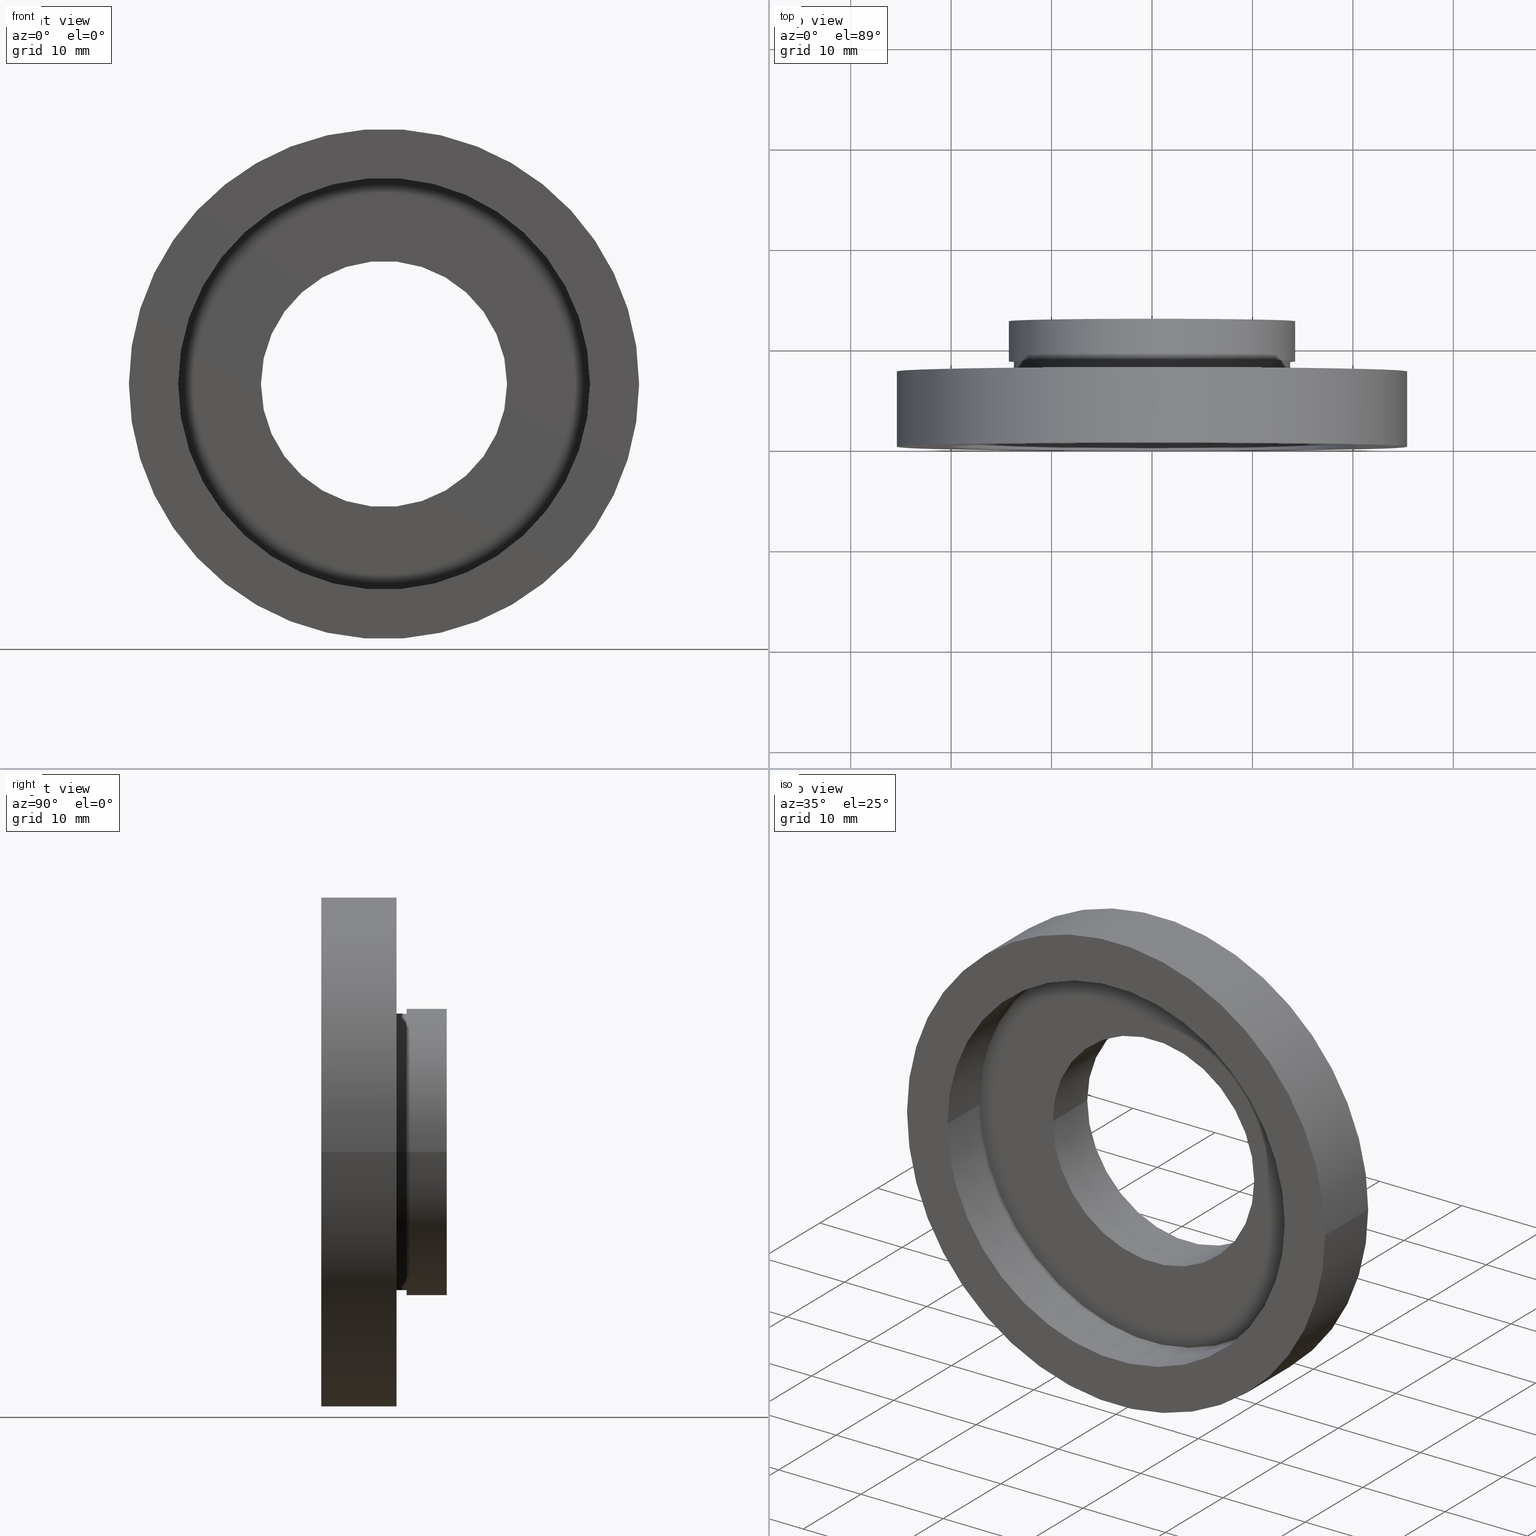
[diagram: canonical four-view strip — front | top / right | iso, engineering-drawing reading convention]
A machine part, canonical four-view strip (front | top / right | iso — engineering-drawing reading convention). The complete STEP part file that produces these views, byte-faithful:
ISO-10303-21;
HEADER;
FILE_DESCRIPTION (( 'STEP AP214' ),
    '1' );
FILE_NAME ('504040.STEP',
    '2019-10-08T02:39:13',
    ( 'user' ),
    ( '΢���й�' ),
    'SwSTEP 2.0',
    'SolidWorks 2016',
    '' );
FILE_SCHEMA (( 'AUTOMOTIVE_DESIGN' ));
ENDSEC;

DATA;
#1 = PRESENTATION_STYLE_ASSIGNMENT (( #20 ) ) ;
#2 = ORIENTED_EDGE ( 'NONE', *, *, #453, .T. ) ;
#3 = MECHANICAL_DESIGN_GEOMETRIC_PRESENTATION_REPRESENTATION (  '', ( #509 ), #420 ) ;
#4 = CARTESIAN_POINT ( 'NONE',  ( 1.149455719078122700E-015, 7.499999999999998200, 0.0000000000000000000 ) ) ;
#5 = AXIS2_PLACEMENT_3D ( 'NONE', #614, #41, #569 ) ;
#6 = EDGE_LOOP ( 'NONE', ( #45, #181 ) ) ;
#7 = FACE_BOUND ( 'NONE', #33, .T. ) ;
#8 = EDGE_LOOP ( 'NONE', ( #594, #173, #358, #580 ) ) ;
#9 = DIRECTION ( 'NONE',  ( -1.000000000000000000, -1.224646799147351000E-016, 0.0000000000000000000 ) ) ;
#10 = PLANE ( 'NONE',  #278 ) ;
#11 = DIRECTION ( 'NONE',  ( -1.000000000000000000, -1.217349807703022400E-016, 0.0000000000000000000 ) ) ;
#12 = DIRECTION ( 'NONE',  ( -1.224646799147351000E-016, 1.000000000000000000, -0.0000000000000000000 ) ) ;
#13 = VERTEX_POINT ( 'NONE', #398 ) ;
#14 = ADVANCED_FACE ( 'NONE', ( #221 ), #611, .F. ) ;
#15 = CYLINDRICAL_SURFACE ( 'NONE', #391, 25.39999999999999900 ) ;
#16 = COLOUR_RGB ( '',1.000000000000000000, 1.000000000000000000, 1.000000000000000000 ) ;
#17 =( GEOMETRIC_REPRESENTATION_CONTEXT ( 3 ) GLOBAL_UNCERTAINTY_ASSIGNED_CONTEXT ( ( #314 ) ) GLOBAL_UNIT_ASSIGNED_CONTEXT ( ( #127, #71, #486 ) ) REPRESENTATION_CONTEXT ( 'NONE', 'WORKASPACE' ) );
#18 = VERTEX_POINT ( 'NONE', #373 ) ;
#19 = DIRECTION ( 'NONE',  ( -1.000000000000000000, -2.434699615406044700E-016, 0.0000000000000000000 ) ) ;
#20 = SURFACE_STYLE_USAGE ( .BOTH. , #421 ) ;
#21 = CARTESIAN_POINT ( 'NONE',  ( 1.026991039163387700E-015, 8.499999999999998200, 0.0000000000000000000 ) ) ;
#22 = EDGE_CURVE ( 'NONE', #435, #523, #550, .T. ) ;
#23 = CARTESIAN_POINT ( 'NONE',  ( -20.50000000000000400, 16.88601823708207300, 0.0000000000000000000 ) ) ;
#24 = ORIENTED_EDGE ( 'NONE', *, *, #302, .T. ) ;
#25 = PRESENTATION_STYLE_ASSIGNMENT (( #219 ) ) ;
#26 = CARTESIAN_POINT ( 'NONE',  ( 20.50000000000000400, -9.589210137015444400E-016, 2.510525938252074500E-015 ) ) ;
#27 = AXIS2_PLACEMENT_3D ( 'NONE', #516, #568, #134 ) ;
#28 = ORIENTED_EDGE ( 'NONE', *, *, #613, .T. ) ;
#29 = CARTESIAN_POINT ( 'NONE',  ( -25.39999999999999900, 16.88601823708207300, 0.0000000000000000000 ) ) ;
#30 = DIRECTION ( 'NONE',  ( -1.224646799147351000E-016, 1.000000000000000000, -0.0000000000000000000 ) ) ;
#31 = PRESENTATION_LAYER_ASSIGNMENT (  '', '', ( #48 ) ) ;
#32 = FILL_AREA_STYLE_COLOUR ( '', #403 ) ;
#33 = EDGE_LOOP ( 'NONE', ( #518, #360 ) ) ;
#34 = ORIENTED_EDGE ( 'NONE', *, *, #609, .T. ) ;
#35 = EDGE_CURVE ( 'NONE', #351, #63, #70, .T. ) ;
#36 = CARTESIAN_POINT ( 'NONE',  ( -20.49999999999999600, -5.979972890205683900E-015, 0.0000000000000000000 ) ) ;
#37 = ORIENTED_EDGE ( 'NONE', *, *, #247, .F. ) ;
#38 = SURFACE_SIDE_STYLE ('',( #563 ) ) ;
#39 = EDGE_CURVE ( 'NONE', #63, #65, #289, .T. ) ;
#40 = DIRECTION ( 'NONE',  ( -1.000000000000000000, 0.0000000000000000000, 0.0000000000000000000 ) ) ;
#41 = DIRECTION ( 'NONE',  ( -1.224646799147351000E-016, 1.000000000000000000, -0.0000000000000000000 ) ) ;
#42 = PRESENTATION_LAYER_ASSIGNMENT (  '', '', ( #509 ) ) ;
#43 = CARTESIAN_POINT ( 'NONE',  ( 1.026991039163387700E-015, 8.499999999999998200, 0.0000000000000000000 ) ) ;
#44 = ORIENTED_EDGE ( 'NONE', *, *, #247, .T. ) ;
#45 = ORIENTED_EDGE ( 'NONE', *, *, #465, .T. ) ;
#46 = CYLINDRICAL_SURFACE ( 'NONE', #199, 13.75000000000000000 ) ;
#47 = EDGE_LOOP ( 'NONE', ( #228, #77 ) ) ;
#48 = STYLED_ITEM ( 'NONE', ( #538 ), #556 ) ;
#49 = FILL_AREA_STYLE ('',( #365 ) ) ;
#50 = CARTESIAN_POINT ( 'NONE',  ( 0.0000000000000000000, 16.88601823708207700, 0.0000000000000000000 ) ) ;
#51 = AXIS2_PLACEMENT_3D ( 'NONE', #481, #198, #434 ) ;
#52 = ORIENTED_EDGE ( 'NONE', *, *, #504, .F. ) ;
#53 = FILL_AREA_STYLE_COLOUR ( '', #87 ) ;
#54 = EDGE_LOOP ( 'NONE', ( #67, #587 ) ) ;
#55 = CIRCLE ( 'NONE', #88, 13.75000000000000000 ) ;
#56 = AXIS2_PLACEMENT_3D ( 'NONE', #600, #188, #573 ) ;
#57 = EDGE_LOOP ( 'NONE', ( #589, #24 ) ) ;
#58 = ORIENTED_EDGE ( 'NONE', *, *, #427, .F. ) ;
#59 = AXIS2_PLACEMENT_3D ( 'NONE', #397, #226, #19 ) ;
#60 = PRODUCT ( '504040', '504040', '', ( #524 ) ) ;
#61 = DIRECTION ( 'NONE',  ( -1.000000000000000000, -1.233215741215739600E-016, 0.0000000000000000000 ) ) ;
#62 = AXIS2_PLACEMENT_3D ( 'NONE', #43, #338, #472 ) ;
#63 = VERTEX_POINT ( 'NONE', #532 ) ;
#64 = MECHANICAL_DESIGN_GEOMETRIC_PRESENTATION_REPRESENTATION (  '', ( #48 ), #17 ) ;
#65 = VERTEX_POINT ( 'NONE', #186 ) ;
#66 = DIRECTION ( 'NONE',  ( -1.224646799147351000E-016, 1.000000000000000000, -0.0000000000000000000 ) ) ;
#67 = ORIENTED_EDGE ( 'NONE', *, *, #345, .F. ) ;
#68 = CIRCLE ( 'NONE', #159, 21.10000000000000100 ) ;
#69 =( LENGTH_UNIT ( ) NAMED_UNIT ( * ) SI_UNIT ( .MILLI., .METRE. ) );
#70 = LINE ( 'NONE', #160, #363 ) ;
#71 =( NAMED_UNIT ( * ) PLANE_ANGLE_UNIT ( ) SI_UNIT ( $, .RADIAN. ) );
#72 = UNCERTAINTY_MEASURE_WITH_UNIT (LENGTH_MEASURE( 1.000000000000000100E-005 ), #166, 'distance_accuracy_value', 'NONE');
#73 = CARTESIAN_POINT ( 'NONE',  ( 1.394385078907593000E-015, 5.499999999999998200, 0.0000000000000000000 ) ) ;
#74 = FACE_OUTER_BOUND ( 'NONE', #552, .T. ) ;
#75 =( GEOMETRIC_REPRESENTATION_CONTEXT ( 3 ) GLOBAL_UNCERTAINTY_ASSIGNED_CONTEXT ( ( #99 ) ) GLOBAL_UNIT_ASSIGNED_CONTEXT ( ( #311, #176, #480 ) ) REPRESENTATION_CONTEXT ( 'NONE', 'WORKASPACE' ) );
#76 = AXIS2_PLACEMENT_3D ( 'NONE', #145, #205, #194 ) ;
#77 = ORIENTED_EDGE ( 'NONE', *, *, #441, .T. ) ;
#78 = CARTESIAN_POINT ( 'NONE',  ( -14.25000000000000200, 16.88601823708207300, 0.0000000000000000000 ) ) ;
#79 = DIRECTION ( 'NONE',  ( -1.224646799147351000E-016, 1.000000000000000000, -0.0000000000000000000 ) ) ;
#80 =( LENGTH_UNIT ( ) NAMED_UNIT ( * ) SI_UNIT ( .MILLI., .METRE. ) );
#81 = MECHANICAL_DESIGN_GEOMETRIC_PRESENTATION_REPRESENTATION (  '', ( #93 ), #75 ) ;
#82 = DIRECTION ( 'NONE',  ( -1.224646799147351000E-016, 1.000000000000000000, -0.0000000000000000000 ) ) ;
#83 = PLANE ( 'NONE',  #341 ) ;
#84 = ADVANCED_FACE ( 'NONE', ( #74 ), #356, .F. ) ;
#85 = CIRCLE ( 'NONE', #347, 21.10000000000000100 ) ;
#86 = CARTESIAN_POINT ( 'NONE',  ( 25.39999999999999900, 7.500000000000000000, 3.110602869834276900E-015 ) ) ;
#87 = COLOUR_RGB ( '',1.000000000000000000, 1.000000000000000000, 1.000000000000000000 ) ;
#88 = AXIS2_PLACEMENT_3D ( 'NONE', #283, #141, #187 ) ;
#89 = ORIENTED_EDGE ( 'NONE', *, *, #465, .F. ) ;
#90 = CARTESIAN_POINT ( 'NONE',  ( 13.75000000000000200, 8.500000000000000000, 1.683889348827610700E-015 ) ) ;
#91 = CARTESIAN_POINT ( 'NONE',  ( -13.75000000000000000, 16.88601823708207700, 0.0000000000000000000 ) ) ;
#92 = APPLICATION_PROTOCOL_DEFINITION ( 'draft international standard', 'automotive_design', 1998, #330 ) ;
#93 = STYLED_ITEM ( 'NONE', ( #1 ), #520 ) ;
#94 = DIRECTION ( 'NONE',  ( -1.224646799147351000E-016, 1.000000000000000000, 0.0000000000000000000 ) ) ;
#95 = CARTESIAN_POINT ( 'NONE',  ( 5.371323195044474300E-016, 12.49999999999999600, 0.0000000000000000000 ) ) ;
#96 = APPLICATION_PROTOCOL_DEFINITION ( 'draft international standard', 'automotive_design', 1998, #390 ) ;
#97 = CIRCLE ( 'NONE', #291, 20.50000000000000000 ) ;
#98 = DIRECTION ( 'NONE',  ( -1.224646799147351000E-016, 1.000000000000000000, -0.0000000000000000000 ) ) ;
#99 = UNCERTAINTY_MEASURE_WITH_UNIT (LENGTH_MEASURE( 1.000000000000000100E-005 ), #311, 'distance_accuracy_value', 'NONE');
#100 = EDGE_CURVE ( 'NONE', #476, #207, #85, .T. ) ;
#101 = CARTESIAN_POINT ( 'NONE',  ( -12.25000000000000000, 16.88601823708207700, 0.0000000000000000000 ) ) ;
#102 = EDGE_LOOP ( 'NONE', ( #406, #191 ) ) ;
#103 = FACE_OUTER_BOUND ( 'NONE', #467, .T. ) ;
#104 = ORIENTED_EDGE ( 'NONE', *, *, #527, .T. ) ;
#105 = FACE_OUTER_BOUND ( 'NONE', #320, .T. ) ;
#106 = EDGE_LOOP ( 'NONE', ( #220, #178, #268, #58 ) ) ;
#107 = AXIS2_PLACEMENT_3D ( 'NONE', #382, #196, #431 ) ;
#108 = CARTESIAN_POINT ( 'NONE',  ( 1.149455719078123100E-015, 7.499999999999996400, 0.0000000000000000000 ) ) ;
#109 = ORIENTED_EDGE ( 'NONE', *, *, #457, .F. ) ;
#110 = CIRCLE ( 'NONE', #185, 12.25000000000000000 ) ;
#111 = AXIS2_PLACEMENT_3D ( 'NONE', #380, #277, #331 ) ;
#112 = EDGE_LOOP ( 'NONE', ( #28, #193 ) ) ;
#113 =( NAMED_UNIT ( * ) SI_UNIT ( $, .STERADIAN. ) SOLID_ANGLE_UNIT ( ) );
#114 = VERTEX_POINT ( 'NONE', #576 ) ;
#115 = SURFACE_STYLE_FILL_AREA ( #515 ) ;
#116 = ORIENTED_EDGE ( 'NONE', *, *, #503, .F. ) ;
#117 = CARTESIAN_POINT ( 'NONE',  ( -14.25000000000000200, 12.49999999999999500, 0.0000000000000000000 ) ) ;
#118 =( NAMED_UNIT ( * ) PLANE_ANGLE_UNIT ( ) SI_UNIT ( $, .RADIAN. ) );
#119 = AXIS2_PLACEMENT_3D ( 'NONE', #73, #369, #461 ) ;
#120 = VECTOR ( 'NONE', #362, 1000.000000000000000 ) ;
#121 = AXIS2_PLACEMENT_3D ( 'NONE', #605, #82, #131 ) ;
#122 = EDGE_LOOP ( 'NONE', ( #104, #287, #89, #260 ) ) ;
#123 = CARTESIAN_POINT ( 'NONE',  ( -25.39999999999999100, -6.580049821787884700E-015, 0.0000000000000000000 ) ) ;
#124 = CYLINDRICAL_SURFACE ( 'NONE', #309, 20.50000000000000400 ) ;
#125 = FILL_AREA_STYLE ('',( #508 ) ) ;
#126 = AXIS2_PLACEMENT_3D ( 'NONE', #269, #510, #417 ) ;
#127 =( LENGTH_UNIT ( ) NAMED_UNIT ( * ) SI_UNIT ( .MILLI., .METRE. ) );
#128 = AXIS2_PLACEMENT_3D ( 'NONE', #95, #30, #607 ) ;
#129 = SURFACE_STYLE_FILL_AREA ( #125 ) ;
#130 = SURFACE_STYLE_FILL_AREA ( #379 ) ;
#131 = DIRECTION ( 'NONE',  ( -1.000000000000000000, -1.233215741215739600E-016, 0.0000000000000000000 ) ) ;
#132 = ORIENTED_EDGE ( 'NONE', *, *, #491, .F. ) ;
#133 =( NAMED_UNIT ( * ) SI_UNIT ( $, .STERADIAN. ) SOLID_ANGLE_UNIT ( ) );
#134 = DIRECTION ( 'NONE',  ( -1.000000000000000000, -1.224646799147351000E-016, 0.0000000000000000000 ) ) ;
#135 = DIRECTION ( 'NONE',  ( -1.224646799147351000E-016, 1.000000000000000000, -0.0000000000000000000 ) ) ;
#136 = ORIENTED_EDGE ( 'NONE', *, *, #444, .F. ) ;
#137 = CIRCLE ( 'NONE', #5, 25.39999999999999500 ) ;
#138 = ORIENTED_EDGE ( 'NONE', *, *, #438, .F. ) ;
#139 = LINE ( 'NONE', #91, #416 ) ;
#140 = DIRECTION ( 'NONE',  ( -1.224646799147351000E-016, 1.000000000000000000, -0.0000000000000000000 ) ) ;
#141 = DIRECTION ( 'NONE',  ( -1.224646799147351000E-016, 1.000000000000000000, -0.0000000000000000000 ) ) ;
#142 =( NAMED_UNIT ( * ) PLANE_ANGLE_UNIT ( ) SI_UNIT ( $, .RADIAN. ) );
#143 = SURFACE_SIDE_STYLE ('',( #412 ) ) ;
#144 = UNCERTAINTY_MEASURE_WITH_UNIT (LENGTH_MEASURE( 1.000000000000000100E-005 ), #69, 'distance_accuracy_value', 'NONE');
#145 = CARTESIAN_POINT ( 'NONE',  ( 0.0000000000000000000, 0.0000000000000000000, 0.0000000000000000000 ) ) ;
#146 = DIRECTION ( 'NONE',  ( -1.000000000000000000, -1.233215741215739600E-016, 0.0000000000000000000 ) ) ;
#147 = SURFACE_STYLE_USAGE ( .BOTH. , #38 ) ;
#148 = EDGE_CURVE ( 'NONE', #183, #213, #271, .T. ) ;
#149 = SURFACE_STYLE_FILL_AREA ( #394 ) ;
#150 = FACE_OUTER_BOUND ( 'NONE', #6, .T. ) ;
#151 = FACE_BOUND ( 'NONE', #112, .T. ) ;
#152 = AXIS2_PLACEMENT_3D ( 'NONE', #236, #333, #459 ) ;
#153 = AXIS2_PLACEMENT_3D ( 'NONE', #275, #454, #536 ) ;
#154 = DIRECTION ( 'NONE',  ( -1.224646799147351000E-016, 1.000000000000000000, -0.0000000000000000000 ) ) ;
#155 = ORIENTED_EDGE ( 'NONE', *, *, #543, .T. ) ;
#156 = SURFACE_SIDE_STYLE ('',( #149 ) ) ;
#157 = ORIENTED_EDGE ( 'NONE', *, *, #419, .T. ) ;
#158 = FACE_OUTER_BOUND ( 'NONE', #47, .T. ) ;
#159 = AXIS2_PLACEMENT_3D ( 'NONE', #264, #223, #61 ) ;
#160 = CARTESIAN_POINT ( 'NONE',  ( 20.50000000000000400, 16.88601823708208000, 2.510525938252074500E-015 ) ) ;
#161 = CARTESIAN_POINT ( 'NONE',  ( 0.0000000000000000000, 16.88601823708207700, 0.0000000000000000000 ) ) ;
#162 = AXIS2_PLACEMENT_3D ( 'NONE', #372, #423, #370 ) ;
#163 =( NAMED_UNIT ( * ) SI_UNIT ( $, .STERADIAN. ) SOLID_ANGLE_UNIT ( ) );
#164 = VECTOR ( 'NONE', #599, 1000.000000000000000 ) ;
#165 = PRESENTATION_LAYER_ASSIGNMENT (  '', '', ( #93 ) ) ;
#166 =( LENGTH_UNIT ( ) NAMED_UNIT ( * ) SI_UNIT ( .MILLI., .METRE. ) );
#167 = ADVANCED_FACE ( 'NONE', ( #206, #151 ), #83, .F. ) ;
#168 = PLANE ( 'NONE',  #152 ) ;
#169 = AXIS2_PLACEMENT_3D ( 'NONE', #262, #596, #306 ) ;
#170 = AXIS2_PLACEMENT_3D ( 'NONE', #180, #135, #326 ) ;
#171 = VERTEX_POINT ( 'NONE', #349 ) ;
#172 = FACE_OUTER_BOUND ( 'NONE', #122, .T. ) ;
#173 = ORIENTED_EDGE ( 'NONE', *, *, #438, .T. ) ;
#174 = EDGE_LOOP ( 'NONE', ( #603, #429 ) ) ;
#175 = CARTESIAN_POINT ( 'NONE',  ( 0.0000000000000000000, 16.88601823708207700, 0.0000000000000000000 ) ) ;
#176 =( NAMED_UNIT ( * ) PLANE_ANGLE_UNIT ( ) SI_UNIT ( $, .RADIAN. ) );
#177 = CARTESIAN_POINT ( 'NONE',  ( 1.394385078907593000E-015, 5.499999999999998200, 0.0000000000000000000 ) ) ;
#178 = ORIENTED_EDGE ( 'NONE', *, *, #35, .T. ) ;
#179 = ADVANCED_FACE ( 'NONE', ( #561 ), #124, .F. ) ;
#180 = CARTESIAN_POINT ( 'NONE',  ( 1.026991039163387700E-015, 8.499999999999998200, 0.0000000000000000000 ) ) ;
#181 = ORIENTED_EDGE ( 'NONE', *, *, #503, .T. ) ;
#182 = LINE ( 'NONE', #23, #546 ) ;
#183 = VERTEX_POINT ( 'NONE', #246 ) ;
#184 = PRESENTATION_STYLE_ASSIGNMENT (( #393 ) ) ;
#185 = AXIS2_PLACEMENT_3D ( 'NONE', #437, #66, #410 ) ;
#186 = CARTESIAN_POINT ( 'NONE',  ( -20.50000000000000400, 5.499999999999995600, 0.0000000000000000000 ) ) ;
#187 = DIRECTION ( 'NONE',  ( -1.000000000000000000, -1.261617073437678000E-016, 0.0000000000000000000 ) ) ;
#188 = DIRECTION ( 'NONE',  ( -1.224646799147351000E-016, 1.000000000000000000, -0.0000000000000000000 ) ) ;
#189 = AXIS2_PLACEMENT_3D ( 'NONE', #21, #392, #11 ) ;
#190 = ORIENTED_EDGE ( 'NONE', *, *, #100, .T. ) ;
#191 = ORIENTED_EDGE ( 'NONE', *, *, #419, .F. ) ;
#192 = DIRECTION ( 'NONE',  ( -1.224646799147351000E-016, 1.000000000000000000, -0.0000000000000000000 ) ) ;
#193 = ORIENTED_EDGE ( 'NONE', *, *, #444, .T. ) ;
#194 = DIRECTION ( 'NONE',  ( 1.000000000000000000, 0.0000000000000000000, 0.0000000000000000000 ) ) ;
#195 = AXIS2_PLACEMENT_3D ( 'NONE', #499, #531, #490 ) ;
#196 = DIRECTION ( 'NONE',  ( -1.224646799147351000E-016, 1.000000000000000000, -0.0000000000000000000 ) ) ;
#197 = EDGE_LOOP ( 'NONE', ( #366, #2 ) ) ;
#198 = DIRECTION ( 'NONE',  ( -1.224646799147351000E-016, 1.000000000000000000, -0.0000000000000000000 ) ) ;
#199 = AXIS2_PLACEMENT_3D ( 'NONE', #534, #323, #40 ) ;
#200 = COLOUR_RGB ( '',1.000000000000000000, 1.000000000000000000, 1.000000000000000000 ) ;
#201 = MANIFOLD_SOLID_BREP ( '��ת1', #266 ) ;
#202 = ORIENTED_EDGE ( 'NONE', *, *, #474, .T. ) ;
#203 = SURFACE_SIDE_STYLE ('',( #443 ) ) ;
#204 = DIRECTION ( 'NONE',  ( -1.000000000000000000, -1.644287654954319300E-016, 0.0000000000000000000 ) ) ;
#205 = DIRECTION ( 'NONE',  ( 0.0000000000000000000, 0.0000000000000000000, 1.000000000000000000 ) ) ;
#206 = FACE_OUTER_BOUND ( 'NONE', #102, .T. ) ;
#207 = VERTEX_POINT ( 'NONE', #541 ) ;
#208 = CIRCLE ( 'NONE', #111, 20.50000000000000000 ) ;
#209 = DIRECTION ( 'NONE',  ( -1.224646799147351000E-016, 1.000000000000000000, -0.0000000000000000000 ) ) ;
#210 = AXIS2_PLACEMENT_3D ( 'NONE', #489, #192, #473 ) ;
#211 = VECTOR ( 'NONE', #154, 1000.000000000000000 ) ;
#212 = FACE_OUTER_BOUND ( 'NONE', #574, .T. ) ;
#213 = VERTEX_POINT ( 'NONE', #565 ) ;
#214 = ADVANCED_BREP_SHAPE_REPRESENTATION ( '504040', ( #201, #76 ), #571 ) ;
#215 = ORIENTED_EDGE ( 'NONE', *, *, #491, .T. ) ;
#216 = DIRECTION ( 'NONE',  ( -1.224646799147351000E-016, 1.000000000000000000, -0.0000000000000000000 ) ) ;
#217 = AXIS2_PLACEMENT_3D ( 'NONE', #343, #583, #301 ) ;
#218 = PRESENTATION_LAYER_ASSIGNMENT (  '', '', ( #248 ) ) ;
#219 = SURFACE_STYLE_USAGE ( .BOTH. , #203 ) ;
#220 = ORIENTED_EDGE ( 'NONE', *, *, #302, .F. ) ;
#221 = FACE_OUTER_BOUND ( 'NONE', #593, .T. ) ;
#222 = MECHANICAL_DESIGN_GEOMETRIC_PRESENTATION_REPRESENTATION (  '', ( #248 ), #487 ) ;
#223 = DIRECTION ( 'NONE',  ( -1.224646799147351000E-016, 1.000000000000000000, -0.0000000000000000000 ) ) ;
#224 = DIRECTION ( 'NONE',  ( -1.224646799147351000E-016, 1.000000000000000000, -0.0000000000000000000 ) ) ;
#225 = AXIS2_PLACEMENT_3D ( 'NONE', #622, #346, #241 ) ;
#226 = DIRECTION ( 'NONE',  ( -1.224646799147351000E-016, 1.000000000000000000, -0.0000000000000000000 ) ) ;
#227 = VERTEX_POINT ( 'NONE', #376 ) ;
#228 = ORIENTED_EDGE ( 'NONE', *, *, #313, .T. ) ;
#229 = FACE_OUTER_BOUND ( 'NONE', #230, .T. ) ;
#230 = EDGE_LOOP ( 'NONE', ( #424, #157, #202, #116 ) ) ;
#231 = FACE_BOUND ( 'NONE', #197, .T. ) ;
#232 = ORIENTED_EDGE ( 'NONE', *, *, #35, .F. ) ;
#233 = PRESENTATION_STYLE_ASSIGNMENT (( #304 ) ) ;
#234 = DIRECTION ( 'NONE',  ( -1.224646799147351000E-016, 1.000000000000000000, -0.0000000000000000000 ) ) ;
#235 = AXIS2_PLACEMENT_3D ( 'NONE', #50, #254, #620 ) ;
#236 = CARTESIAN_POINT ( 'NONE',  ( 12.25000000000000200, 12.49999999999999800, 0.0000000000000000000 ) ) ;
#237 = CARTESIAN_POINT ( 'NONE',  ( 21.10000000000000100, 6.500000000000000000, 2.584004746200915400E-015 ) ) ;
#238 = VECTOR ( 'NONE', #512, 1000.000000000000000 ) ;
#239 = SHAPE_DEFINITION_REPRESENTATION ( #549, #214 ) ;
#240 = CARTESIAN_POINT ( 'NONE',  ( 12.25000000000000000, 16.88601823708207700, 1.500192328955507700E-015 ) ) ;
#241 = DIRECTION ( 'NONE',  ( -1.000000000000000000, -1.233215741215739600E-016, 0.0000000000000000000 ) ) ;
#242 =( NAMED_UNIT ( * ) SI_UNIT ( $, .STERADIAN. ) SOLID_ANGLE_UNIT ( ) );
#243 = CARTESIAN_POINT ( 'NONE',  ( 0.0000000000000000000, 16.88601823708207700, 0.0000000000000000000 ) ) ;
#244 = ADVANCED_FACE ( 'NONE', ( #335, #158 ), #348, .F. ) ;
#245 =( GEOMETRIC_REPRESENTATION_CONTEXT ( 3 ) GLOBAL_UNCERTAINTY_ASSIGNED_CONTEXT ( ( #433 ) ) GLOBAL_UNIT_ASSIGNED_CONTEXT ( ( #422, #615, #616 ) ) REPRESENTATION_CONTEXT ( 'NONE', 'WORKASPACE' ) );
#246 = CARTESIAN_POINT ( 'NONE',  ( 14.25000000000000500, 8.500000000000000000, 1.745121688784979000E-015 ) ) ;
#247 = EDGE_CURVE ( 'NONE', #435, #470, #250, .T. ) ;
#248 = STYLED_ITEM ( 'NONE', ( #25 ), #359 ) ;
#249 = CARTESIAN_POINT ( 'NONE',  ( 2.067940818438636500E-015, -3.469446951953614200E-015, 0.0000000000000000000 ) ) ;
#250 = LINE ( 'NONE', #29, #211 ) ;
#251 = EDGE_LOOP ( 'NONE', ( #52, #257 ) ) ;
#252 = ADVANCED_FACE ( 'NONE', ( #212 ), #384, .T. ) ;
#253 = UNCERTAINTY_MEASURE_WITH_UNIT (LENGTH_MEASURE( 1.000000000000000100E-005 ), #80, 'distance_accuracy_value', 'NONE');
#254 = DIRECTION ( 'NONE',  ( -1.224646799147351000E-016, 1.000000000000000000, -0.0000000000000000000 ) ) ;
#255 = PRESENTATION_LAYER_ASSIGNMENT (  '', '', ( #263 ) ) ;
#256 = MECHANICAL_DESIGN_GEOMETRIC_PRESENTATION_REPRESENTATION (  '', ( #263 ), #245 ) ;
#257 = ORIENTED_EDGE ( 'NONE', *, *, #39, .F. ) ;
#258 = LINE ( 'NONE', #78, #387 ) ;
#259 = AXIS2_PLACEMENT_3D ( 'NONE', #108, #234, #511 ) ;
#260 = ORIENTED_EDGE ( 'NONE', *, *, #474, .F. ) ;
#261 = FILL_AREA_STYLE_COLOUR ( '', #588 ) ;
#262 = CARTESIAN_POINT ( 'NONE',  ( 1.271920398992858000E-015, 6.499999999999997300, 0.0000000000000000000 ) ) ;
#263 = STYLED_ITEM ( 'NONE', ( #612 ), #315 ) ;
#264 = CARTESIAN_POINT ( 'NONE',  ( 1.394385078907593200E-015, 5.499999999999996400, 0.0000000000000000000 ) ) ;
#265 = CIRCLE ( 'NONE', #51, 13.75000000000000000 ) ;
#266 = CLOSED_SHELL ( 'NONE', ( #252, #601, #520, #84, #14, #359, #368, #179, #280, #495, #592, #556, #466, #315, #167, #395, #244, #570 ) ) ;
#267 = CIRCLE ( 'NONE', #259, 25.39999999999999900 ) ;
#268 = ORIENTED_EDGE ( 'NONE', *, *, #39, .T. ) ;
#269 = CARTESIAN_POINT ( 'NONE',  ( 5.371323195044474300E-016, 12.49999999999999600, 0.0000000000000000000 ) ) ;
#270 = PRODUCT_DEFINITION_FORMATION_WITH_SPECIFIED_SOURCE ( '�κ�', '', #60, .NOT_KNOWN. ) ;
#271 = LINE ( 'NONE', #399, #514 ) ;
#272 = CIRCLE ( 'NONE', #162, 14.25000000000000200 ) ;
#273 = ORIENTED_EDGE ( 'NONE', *, *, #542, .F. ) ;
#274 = LINE ( 'NONE', #353, #120 ) ;
#275 = CARTESIAN_POINT ( 'NONE',  ( 5.371323195044474300E-016, 12.49999999999999600, 0.0000000000000000000 ) ) ;
#276 = AXIS2_PLACEMENT_3D ( 'NONE', #161, #319, #535 ) ;
#277 = DIRECTION ( 'NONE',  ( -1.224646799147351000E-016, 1.000000000000000000, -0.0000000000000000000 ) ) ;
#278 = AXIS2_PLACEMENT_3D ( 'NONE', #440, #567, #498 ) ;
#279 = EDGE_LOOP ( 'NONE', ( #439, #468 ) ) ;
#280 = ADVANCED_FACE ( 'NONE', ( #386, #493 ), #10, .F. ) ;
#281 = CIRCLE ( 'NONE', #119, 20.50000000000000400 ) ;
#282 = AXIS2_PLACEMENT_3D ( 'NONE', #557, #554, #558 ) ;
#283 = CARTESIAN_POINT ( 'NONE',  ( 1.149455719078122700E-015, 7.499999999999998200, 0.0000000000000000000 ) ) ;
#284 = EDGE_CURVE ( 'NONE', #523, #488, #274, .T. ) ;
#285 =( LENGTH_UNIT ( ) NAMED_UNIT ( * ) SI_UNIT ( .MILLI., .METRE. ) );
#286 = CARTESIAN_POINT ( 'NONE',  ( -25.39999999999999900, 7.499999999999992900, 0.0000000000000000000 ) ) ;
#287 = ORIENTED_EDGE ( 'NONE', *, *, #148, .T. ) ;
#288 = LINE ( 'NONE', #316, #164 ) ;
#289 = CIRCLE ( 'NONE', #400, 20.50000000000000400 ) ;
#290 = CARTESIAN_POINT ( 'NONE',  ( 21.10000000000000100, 16.88601823708208000, 2.584004746200915400E-015 ) ) ;
#291 = AXIS2_PLACEMENT_3D ( 'NONE', #249, #485, #355 ) ;
#292 = MECHANICAL_DESIGN_GEOMETRIC_PRESENTATION_REPRESENTATION (  '', ( #305 ), #303 ) ;
#293 = ORIENTED_EDGE ( 'NONE', *, *, #590, .F. ) ;
#294 = CYLINDRICAL_SURFACE ( 'NONE', #107, 21.10000000000000100 ) ;
#295 = ORIENTED_EDGE ( 'NONE', *, *, #478, .T. ) ;
#296 = DIRECTION ( 'NONE',  ( -1.000000000000000000, -1.269309860470834200E-016, 0.0000000000000000000 ) ) ;
#297 = CIRCLE ( 'NONE', #170, 13.75000000000000000 ) ;
#298 = PRODUCT_DEFINITION ( 'δ֪', '', #270, #533 ) ;
#299 = DIRECTION ( 'NONE',  ( -1.000000000000000000, -1.261617073437678000E-016, 0.0000000000000000000 ) ) ;
#300 = VERTEX_POINT ( 'NONE', #623 ) ;
#301 = DIRECTION ( 'NONE',  ( -1.000000000000000000, -1.692413147294445700E-016, 0.0000000000000000000 ) ) ;
#302 = EDGE_CURVE ( 'NONE', #351, #602, #97, .T. ) ;
#303 =( GEOMETRIC_REPRESENTATION_CONTEXT ( 3 ) GLOBAL_UNCERTAINTY_ASSIGNED_CONTEXT ( ( #584 ) ) GLOBAL_UNIT_ASSIGNED_CONTEXT ( ( #324, #307, #411 ) ) REPRESENTATION_CONTEXT ( 'NONE', 'WORKASPACE' ) );
#304 = SURFACE_STYLE_USAGE ( .BOTH. , #492 ) ;
#305 = STYLED_ITEM ( 'NONE', ( #233 ), #201 ) ;
#306 = DIRECTION ( 'NONE',  ( -1.000000000000000000, -1.416100796715760900E-016, 0.0000000000000000000 ) ) ;
#307 =( NAMED_UNIT ( * ) PLANE_ANGLE_UNIT ( ) SI_UNIT ( $, .RADIAN. ) );
#308 = ORIENTED_EDGE ( 'NONE', *, *, #430, .F. ) ;
#309 = AXIS2_PLACEMENT_3D ( 'NONE', #494, #224, #404 ) ;
#310 = CIRCLE ( 'NONE', #153, 12.25000000000000200 ) ;
#311 =( LENGTH_UNIT ( ) NAMED_UNIT ( * ) SI_UNIT ( .MILLI., .METRE. ) );
#312 =( GEOMETRIC_REPRESENTATION_CONTEXT ( 3 ) GLOBAL_UNCERTAINTY_ASSIGNED_CONTEXT ( ( #253 ) ) GLOBAL_UNIT_ASSIGNED_CONTEXT ( ( #80, #352, #163 ) ) REPRESENTATION_CONTEXT ( 'NONE', 'WORKASPACE' ) );
#313 = EDGE_CURVE ( 'NONE', #470, #488, #267, .T. ) ;
#314 = UNCERTAINTY_MEASURE_WITH_UNIT (LENGTH_MEASURE( 1.000000000000000100E-005 ), #127, 'distance_accuracy_value', 'NONE');
#315 = ADVANCED_FACE ( 'NONE', ( #229 ), #521, .T. ) ;
#316 = CARTESIAN_POINT ( 'NONE',  ( 13.75000000000000000, 16.88601823708207700, 1.683889348827610700E-015 ) ) ;
#317 = ORIENTED_EDGE ( 'NONE', *, *, #621, .T. ) ;
#318 = CIRCLE ( 'NONE', #225, 21.10000000000000100 ) ;
#319 = DIRECTION ( 'NONE',  ( -1.224646799147351000E-016, 1.000000000000000000, -0.0000000000000000000 ) ) ;
#320 = EDGE_LOOP ( 'NONE', ( #138, #155, #502, #136 ) ) ;
#321 = PRESENTATION_LAYER_ASSIGNMENT (  '', '', ( #305 ) ) ;
#322 = PRESENTATION_LAYER_ASSIGNMENT (  '', '', ( #329 ) ) ;
#323 = DIRECTION ( 'NONE',  ( -1.224646799147351000E-016, 1.000000000000000000, -0.0000000000000000000 ) ) ;
#324 =( LENGTH_UNIT ( ) NAMED_UNIT ( * ) SI_UNIT ( .MILLI., .METRE. ) );
#325 = MECHANICAL_DESIGN_GEOMETRIC_PRESENTATION_REPRESENTATION (  '', ( #329 ), #312 ) ;
#326 = DIRECTION ( 'NONE',  ( -1.000000000000000000, -1.261617073437678000E-016, 0.0000000000000000000 ) ) ;
#327 = PRESENTATION_STYLE_ASSIGNMENT (( #497 ) ) ;
#328 = FACE_OUTER_BOUND ( 'NONE', #501, .T. ) ;
#329 = STYLED_ITEM ( 'NONE', ( #327 ), #179 ) ;
#330 = APPLICATION_CONTEXT ( 'automotive_design' ) ;
#331 = DIRECTION ( 'NONE',  ( -1.000000000000000000, -1.224646799147351200E-016, 0.0000000000000000000 ) ) ;
#332 = SURFACE_SIDE_STYLE ('',( #505 ) ) ;
#333 = DIRECTION ( 'NONE',  ( 1.224646799147351000E-016, -1.000000000000000000, 0.0000000000000000000 ) ) ;
#334 = ORIENTED_EDGE ( 'NONE', *, *, #313, .F. ) ;
#335 = FACE_BOUND ( 'NONE', #279, .T. ) ;
#336 = VERTEX_POINT ( 'NONE', #432 ) ;
#337 = FILL_AREA_STYLE ('',( #53 ) ) ;
#338 = DIRECTION ( 'NONE',  ( -1.224646799147351000E-016, 1.000000000000000000, -0.0000000000000000000 ) ) ;
#339 =( NAMED_UNIT ( * ) PLANE_ANGLE_UNIT ( ) SI_UNIT ( $, .RADIAN. ) );
#340 = CARTESIAN_POINT ( 'NONE',  ( 0.0000000000000000000, 16.88601823708207700, 0.0000000000000000000 ) ) ;
#341 = AXIS2_PLACEMENT_3D ( 'NONE', #564, #94, #572 ) ;
#342 = FILL_AREA_STYLE_COLOUR ( '', #16 ) ;
#343 = CARTESIAN_POINT ( 'NONE',  ( 0.0000000000000000000, 16.88601823708207700, 0.0000000000000000000 ) ) ;
#344 = CYLINDRICAL_SURFACE ( 'NONE', #217, 20.50000000000000400 ) ;
#345 = EDGE_CURVE ( 'NONE', #207, #476, #318, .T. ) ;
#346 = DIRECTION ( 'NONE',  ( -1.224646799147351000E-016, 1.000000000000000000, -0.0000000000000000000 ) ) ;
#347 = AXIS2_PLACEMENT_3D ( 'NONE', #364, #579, #146 ) ;
#348 = PLANE ( 'NONE',  #282 ) ;
#349 = CARTESIAN_POINT ( 'NONE',  ( 12.25000000000000400, 6.499999999999999100, 1.500192328955508100E-015 ) ) ;
#350 = AXIS2_PLACEMENT_3D ( 'NONE', #175, #529, #585 ) ;
#351 = VERTEX_POINT ( 'NONE', #26 ) ;
#352 =( NAMED_UNIT ( * ) PLANE_ANGLE_UNIT ( ) SI_UNIT ( $, .RADIAN. ) );
#353 = CARTESIAN_POINT ( 'NONE',  ( 25.39999999999999900, 16.88601823708208000, 3.110602869834276900E-015 ) ) ;
#354 = DIRECTION ( 'NONE',  ( -1.224646799147351000E-016, 1.000000000000000000, -0.0000000000000000000 ) ) ;
#355 = DIRECTION ( 'NONE',  ( -1.000000000000000000, -1.224646799147351200E-016, 0.0000000000000000000 ) ) ;
#356 = CYLINDRICAL_SURFACE ( 'NONE', #350, 12.25000000000000000 ) ;
#357 =( GEOMETRIC_REPRESENTATION_CONTEXT ( 3 ) GLOBAL_UNCERTAINTY_ASSIGNED_CONTEXT ( ( #144 ) ) GLOBAL_UNIT_ASSIGNED_CONTEXT ( ( #69, #118, #133 ) ) REPRESENTATION_CONTEXT ( 'NONE', 'WORKASPACE' ) );
#358 = ORIENTED_EDGE ( 'NONE', *, *, #613, .F. ) ;
#359 = ADVANCED_FACE ( 'NONE', ( #447 ), #344, .F. ) ;
#360 = ORIENTED_EDGE ( 'NONE', *, *, #460, .F. ) ;
#361 = CYLINDRICAL_SURFACE ( 'NONE', #446, 13.75000000000000000 ) ;
#362 = DIRECTION ( 'NONE',  ( -1.224646799147351000E-016, 1.000000000000000000, -0.0000000000000000000 ) ) ;
#363 = VECTOR ( 'NONE', #140, 1000.000000000000000 ) ;
#364 = CARTESIAN_POINT ( 'NONE',  ( 1.271920398992858000E-015, 6.499999999999997300, 0.0000000000000000000 ) ) ;
#365 = FILL_AREA_STYLE_COLOUR ( '', #200 ) ;
#366 = ORIENTED_EDGE ( 'NONE', *, *, #449, .T. ) ;
#367 = UNCERTAINTY_MEASURE_WITH_UNIT (LENGTH_MEASURE( 1.000000000000000100E-005 ), #566, 'distance_accuracy_value', 'NONE');
#368 = ADVANCED_FACE ( 'NONE', ( #551, #496 ), #548, .F. ) ;
#369 = DIRECTION ( 'NONE',  ( -1.224646799147351000E-016, 1.000000000000000000, -0.0000000000000000000 ) ) ;
#370 = DIRECTION ( 'NONE',  ( -1.000000000000000000, -1.217349807703022400E-016, 0.0000000000000000000 ) ) ;
#371 = PRESENTATION_LAYER_ASSIGNMENT (  '', '', ( #388 ) ) ;
#372 = CARTESIAN_POINT ( 'NONE',  ( 5.371323195044474300E-016, 12.49999999999999600, 0.0000000000000000000 ) ) ;
#373 = CARTESIAN_POINT ( 'NONE',  ( -14.25000000000000000, 8.499999999999996400, 0.0000000000000000000 ) ) ;
#374 = DIRECTION ( 'NONE',  ( -1.000000000000000000, -1.365923996832131600E-016, 0.0000000000000000000 ) ) ;
#375 = ORIENTED_EDGE ( 'NONE', *, *, #453, .F. ) ;
#376 = CARTESIAN_POINT ( 'NONE',  ( 21.10000000000000100, 5.499999999999999100, 2.584004746200915400E-015 ) ) ;
#377 = FACE_OUTER_BOUND ( 'NONE', #545, .T. ) ;
#378 = MECHANICAL_DESIGN_GEOMETRIC_PRESENTATION_REPRESENTATION (  '', ( #388 ), #357 ) ;
#379 = FILL_AREA_STYLE ('',( #484 ) ) ;
#380 = CARTESIAN_POINT ( 'NONE',  ( 2.067940818438636500E-015, -3.469446951953614200E-015, 0.0000000000000000000 ) ) ;
#381 = DIRECTION ( 'NONE',  ( -1.224646799147351000E-016, 1.000000000000000000, -0.0000000000000000000 ) ) ;
#382 = CARTESIAN_POINT ( 'NONE',  ( 0.0000000000000000000, 16.88601823708207700, 0.0000000000000000000 ) ) ;
#383 = AXIS2_PLACEMENT_3D ( 'NONE', #243, #12, #204 ) ;
#384 = CYLINDRICAL_SURFACE ( 'NONE', #276, 25.39999999999999900 ) ;
#385 = ORIENTED_EDGE ( 'NONE', *, *, #22, .T. ) ;
#386 = FACE_BOUND ( 'NONE', #251, .T. ) ;
#387 = VECTOR ( 'NONE', #79, 1000.000000000000000 ) ;
#388 = STYLED_ITEM ( 'NONE', ( #389 ), #84 ) ;
#389 = PRESENTATION_STYLE_ASSIGNMENT (( #608 ) ) ;
#390 = APPLICATION_CONTEXT ( 'automotive_design' ) ;
#391 = AXIS2_PLACEMENT_3D ( 'NONE', #475, #591, #374 ) ;
#392 = DIRECTION ( 'NONE',  ( -1.224646799147351000E-016, 1.000000000000000000, -0.0000000000000000000 ) ) ;
#393 = SURFACE_STYLE_USAGE ( .BOTH. , #332 ) ;
#394 = FILL_AREA_STYLE ('',( #342 ) ) ;
#395 = ADVANCED_FACE ( 'NONE', ( #105 ), #46, .T. ) ;
#396 = CIRCLE ( 'NONE', #121, 21.10000000000000100 ) ;
#397 = CARTESIAN_POINT ( 'NONE',  ( 0.0000000000000000000, 16.88601823708207700, 0.0000000000000000000 ) ) ;
#398 = CARTESIAN_POINT ( 'NONE',  ( -13.74999999999999800, 8.499999999999996400, 0.0000000000000000000 ) ) ;
#399 = CARTESIAN_POINT ( 'NONE',  ( 14.25000000000000200, 16.88601823708208000, 1.745121688784978600E-015 ) ) ;
#400 = AXIS2_PLACEMENT_3D ( 'NONE', #177, #381, #296 ) ;
#401 = LINE ( 'NONE', #458, #581 ) ;
#402 = CIRCLE ( 'NONE', #479, 13.75000000000000000 ) ;
#403 = COLOUR_RGB ( '',1.000000000000000000, 1.000000000000000000, 1.000000000000000000 ) ;
#404 = DIRECTION ( 'NONE',  ( -1.000000000000000000, -1.692413147294445700E-016, 0.0000000000000000000 ) ) ;
#405 = DIRECTION ( 'NONE',  ( -1.224646799147351000E-016, 1.000000000000000000, -0.0000000000000000000 ) ) ;
#406 = ORIENTED_EDGE ( 'NONE', *, *, #527, .F. ) ;
#407 = LINE ( 'NONE', #240, #238 ) ;
#408 = VERTEX_POINT ( 'NONE', #426 ) ;
#409 = FILL_AREA_STYLE_COLOUR ( '', #624 ) ;
#410 = DIRECTION ( 'NONE',  ( -1.000000000000000000, -1.416100796715760900E-016, 0.0000000000000000000 ) ) ;
#411 =( NAMED_UNIT ( * ) SI_UNIT ( $, .STERADIAN. ) SOLID_ANGLE_UNIT ( ) );
#412 = SURFACE_STYLE_FILL_AREA ( #452 ) ;
#413 = AXIS2_PLACEMENT_3D ( 'NONE', #526, #517, #9 ) ;
#414 = CIRCLE ( 'NONE', #169, 12.25000000000000000 ) ;
#415 = SURFACE_SIDE_STYLE ('',( #115 ) ) ;
#416 = VECTOR ( 'NONE', #482, 1000.000000000000000 ) ;
#417 = DIRECTION ( 'NONE',  ( -1.000000000000000000, -1.217349807703022400E-016, 0.0000000000000000000 ) ) ;
#418 = SURFACE_STYLE_USAGE ( .BOTH. , #415 ) ;
#419 = EDGE_CURVE ( 'NONE', #183, #18, #436, .T. ) ;
#420 =( GEOMETRIC_REPRESENTATION_CONTEXT ( 3 ) GLOBAL_UNCERTAINTY_ASSIGNED_CONTEXT ( ( #367 ) ) GLOBAL_UNIT_ASSIGNED_CONTEXT ( ( #566, #339, #242 ) ) REPRESENTATION_CONTEXT ( 'NONE', 'WORKASPACE' ) );
#421 = SURFACE_SIDE_STYLE ('',( #129 ) ) ;
#422 =( LENGTH_UNIT ( ) NAMED_UNIT ( * ) SI_UNIT ( .MILLI., .METRE. ) );
#423 = DIRECTION ( 'NONE',  ( -1.224646799147351000E-016, 1.000000000000000000, -0.0000000000000000000 ) ) ;
#424 = ORIENTED_EDGE ( 'NONE', *, *, #148, .F. ) ;
#425 = VECTOR ( 'NONE', #216, 1000.000000000000000 ) ;
#426 = CARTESIAN_POINT ( 'NONE',  ( -12.25000000000000200, 12.49999999999999500, 0.0000000000000000000 ) ) ;
#427 = EDGE_CURVE ( 'NONE', #602, #65, #182, .T. ) ;
#428 = CIRCLE ( 'NONE', #126, 14.25000000000000200 ) ;
#429 = ORIENTED_EDGE ( 'NONE', *, *, #621, .F. ) ;
#430 = EDGE_CURVE ( 'NONE', #336, #408, #469, .T. ) ;
#431 = DIRECTION ( 'NONE',  ( -1.000000000000000000, -1.644287654954319300E-016, 0.0000000000000000000 ) ) ;
#432 = CARTESIAN_POINT ( 'NONE',  ( -12.24999999999999800, 6.499999999999995600, 0.0000000000000000000 ) ) ;
#433 = UNCERTAINTY_MEASURE_WITH_UNIT (LENGTH_MEASURE( 1.000000000000000100E-005 ), #422, 'distance_accuracy_value', 'NONE');
#434 = DIRECTION ( 'NONE',  ( -1.000000000000000000, -1.261617073437678000E-016, 0.0000000000000000000 ) ) ;
#435 = VERTEX_POINT ( 'NONE', #123 ) ;
#436 = CIRCLE ( 'NONE', #189, 14.25000000000000200 ) ;
#437 = CARTESIAN_POINT ( 'NONE',  ( 1.271920398992858000E-015, 6.499999999999997300, 0.0000000000000000000 ) ) ;
#438 = EDGE_CURVE ( 'NONE', #506, #448, #288, .T. ) ;
#439 = ORIENTED_EDGE ( 'NONE', *, *, #606, .F. ) ;
#440 = CARTESIAN_POINT ( 'NONE',  ( 20.50000000000000400, 5.500000000000000000, 0.0000000000000000000 ) ) ;
#441 = EDGE_CURVE ( 'NONE', #488, #470, #471, .T. ) ;
#442 = CYLINDRICAL_SURFACE ( 'NONE', #59, 14.25000000000000200 ) ;
#443 = SURFACE_STYLE_FILL_AREA ( #49 ) ;
#444 = EDGE_CURVE ( 'NONE', #448, #13, #297, .T. ) ;
#445 = EDGE_CURVE ( 'NONE', #171, #300, #407, .T. ) ;
#446 = AXIS2_PLACEMENT_3D ( 'NONE', #340, #405, #582 ) ;
#447 = FACE_OUTER_BOUND ( 'NONE', #106, .T. ) ;
#448 = VERTEX_POINT ( 'NONE', #90 ) ;
#449 = EDGE_CURVE ( 'NONE', #336, #171, #414, .T. ) ;
#450 = CARTESIAN_POINT ( 'NONE',  ( -21.10000000000000100, 5.499999999999993800, 0.0000000000000000000 ) ) ;
#451 =( NAMED_UNIT ( * ) PLANE_ANGLE_UNIT ( ) SI_UNIT ( $, .RADIAN. ) );
#452 = FILL_AREA_STYLE ('',( #409 ) ) ;
#453 = EDGE_CURVE ( 'NONE', #171, #336, #110, .T. ) ;
#454 = DIRECTION ( 'NONE',  ( -1.224646799147351000E-016, 1.000000000000000000, -0.0000000000000000000 ) ) ;
#455 = VERTEX_POINT ( 'NONE', #117 ) ;
#456 = ORIENTED_EDGE ( 'NONE', *, *, #345, .T. ) ;
#457 = EDGE_CURVE ( 'NONE', #617, #227, #68, .T. ) ;
#458 = CARTESIAN_POINT ( 'NONE',  ( -21.10000000000000100, 16.88601823708207300, 0.0000000000000000000 ) ) ;
#459 = DIRECTION ( 'NONE',  ( 1.000000000000000000, 1.224646799147351000E-016, 0.0000000000000000000 ) ) ;
#460 = EDGE_CURVE ( 'NONE', #300, #408, #310, .T. ) ;
#461 = DIRECTION ( 'NONE',  ( -1.000000000000000000, -1.269309860470834200E-016, 0.0000000000000000000 ) ) ;
#462 = ORIENTED_EDGE ( 'NONE', *, *, #284, .T. ) ;
#463 = ORIENTED_EDGE ( 'NONE', *, *, #457, .T. ) ;
#464 = CARTESIAN_POINT ( 'NONE',  ( 25.39999999999999900, -3.588440821193433400E-016, 3.110602869834276900E-015 ) ) ;
#465 = EDGE_CURVE ( 'NONE', #455, #213, #272, .T. ) ;
#466 = ADVANCED_FACE ( 'NONE', ( #7, #150 ), #168, .F. ) ;
#467 = EDGE_LOOP ( 'NONE', ( #555, #317, #44, #540 ) ) ;
#468 = ORIENTED_EDGE ( 'NONE', *, *, #543, .F. ) ;
#469 = LINE ( 'NONE', #101, #425 ) ;
#470 = VERTEX_POINT ( 'NONE', #286 ) ;
#471 = CIRCLE ( 'NONE', #210, 25.39999999999999900 ) ;
#472 = DIRECTION ( 'NONE',  ( -1.000000000000000000, -1.217349807703022400E-016, 0.0000000000000000000 ) ) ;
#473 = DIRECTION ( 'NONE',  ( -1.000000000000000000, -1.365923996832131600E-016, 0.0000000000000000000 ) ) ;
#474 = EDGE_CURVE ( 'NONE', #18, #455, #258, .T. ) ;
#475 = CARTESIAN_POINT ( 'NONE',  ( 0.0000000000000000000, 16.88601823708207700, 0.0000000000000000000 ) ) ;
#476 = VERTEX_POINT ( 'NONE', #237 ) ;
#477 = UNCERTAINTY_MEASURE_WITH_UNIT (LENGTH_MEASURE( 1.000000000000000100E-005 ), #285, 'distance_accuracy_value', 'NONE');
#478 = EDGE_CURVE ( 'NONE', #408, #300, #513, .T. ) ;
#479 = AXIS2_PLACEMENT_3D ( 'NONE', #4, #354, #299 ) ;
#480 =( NAMED_UNIT ( * ) SI_UNIT ( $, .STERADIAN. ) SOLID_ANGLE_UNIT ( ) );
#481 = CARTESIAN_POINT ( 'NONE',  ( 1.026991039163387700E-015, 8.499999999999998200, 0.0000000000000000000 ) ) ;
#482 = DIRECTION ( 'NONE',  ( -1.224646799147351000E-016, 1.000000000000000000, -0.0000000000000000000 ) ) ;
#483 = EDGE_CURVE ( 'NONE', #114, #13, #139, .T. ) ;
#484 = FILL_AREA_STYLE_COLOUR ( '', #604 ) ;
#485 = DIRECTION ( 'NONE',  ( -1.224646799147351000E-016, 1.000000000000000000, -0.0000000000000000000 ) ) ;
#486 =( NAMED_UNIT ( * ) SI_UNIT ( $, .STERADIAN. ) SOLID_ANGLE_UNIT ( ) );
#487 =( GEOMETRIC_REPRESENTATION_CONTEXT ( 3 ) GLOBAL_UNCERTAINTY_ASSIGNED_CONTEXT ( ( #72 ) ) GLOBAL_UNIT_ASSIGNED_CONTEXT ( ( #166, #451, #113 ) ) REPRESENTATION_CONTEXT ( 'NONE', 'WORKASPACE' ) );
#488 = VERTEX_POINT ( 'NONE', #86 ) ;
#489 = CARTESIAN_POINT ( 'NONE',  ( 1.149455719078123100E-015, 7.499999999999996400, 0.0000000000000000000 ) ) ;
#490 = DIRECTION ( 'NONE',  ( -1.000000000000000000, -1.224646799147351000E-016, 0.0000000000000000000 ) ) ;
#491 = EDGE_CURVE ( 'NONE', #227, #617, #396, .T. ) ;
#492 = SURFACE_SIDE_STYLE ('',( #130 ) ) ;
#493 = FACE_OUTER_BOUND ( 'NONE', #537, .T. ) ;
#494 = CARTESIAN_POINT ( 'NONE',  ( 0.0000000000000000000, 16.88601823708207700, 0.0000000000000000000 ) ) ;
#495 = ADVANCED_FACE ( 'NONE', ( #377 ), #294, .F. ) ;
#496 = FACE_BOUND ( 'NONE', #57, .T. ) ;
#497 = SURFACE_STYLE_USAGE ( .BOTH. , #156 ) ;
#498 = DIRECTION ( 'NONE',  ( 1.000000000000000000, 1.224646799147351000E-016, 0.0000000000000000000 ) ) ;
#499 = CARTESIAN_POINT ( 'NONE',  ( 25.39999999999999900, -7.703719777548943400E-031, 0.0000000000000000000 ) ) ;
#500 = LINE ( 'NONE', #290, #595 ) ;
#501 = EDGE_LOOP ( 'NONE', ( #597, #577, #618, #295 ) ) ;
#502 = ORIENTED_EDGE ( 'NONE', *, *, #483, .T. ) ;
#503 = EDGE_CURVE ( 'NONE', #213, #455, #428, .T. ) ;
#504 = EDGE_CURVE ( 'NONE', #65, #63, #281, .T. ) ;
#505 = SURFACE_STYLE_FILL_AREA ( #610 ) ;
#506 = VERTEX_POINT ( 'NONE', #560 ) ;
#507 = ORIENTED_EDGE ( 'NONE', *, *, #590, .T. ) ;
#508 = FILL_AREA_STYLE_COLOUR ( '', #619 ) ;
#509 = STYLED_ITEM ( 'NONE', ( #184 ), #214 ) ;
#510 = DIRECTION ( 'NONE',  ( -1.224646799147351000E-016, 1.000000000000000000, -0.0000000000000000000 ) ) ;
#511 = DIRECTION ( 'NONE',  ( -1.000000000000000000, -1.365923996832131600E-016, 0.0000000000000000000 ) ) ;
#512 = DIRECTION ( 'NONE',  ( -1.224646799147351000E-016, 1.000000000000000000, -0.0000000000000000000 ) ) ;
#513 = CIRCLE ( 'NONE', #128, 12.25000000000000200 ) ;
#514 = VECTOR ( 'NONE', #575, 1000.000000000000000 ) ;
#515 = FILL_AREA_STYLE ('',( #261 ) ) ;
#516 = CARTESIAN_POINT ( 'NONE',  ( 12.25000000000000200, 6.499999999999998200, 0.0000000000000000000 ) ) ;
#517 = DIRECTION ( 'NONE',  ( -1.224646799147351000E-016, 1.000000000000000000, -0.0000000000000000000 ) ) ;
#518 = ORIENTED_EDGE ( 'NONE', *, *, #478, .F. ) ;
#519 = FACE_OUTER_BOUND ( 'NONE', #8, .T. ) ;
#520 = ADVANCED_FACE ( 'NONE', ( #172 ), #442, .T. ) ;
#521 = CYLINDRICAL_SURFACE ( 'NONE', #235, 14.25000000000000200 ) ;
#522 = DIRECTION ( 'NONE',  ( -1.224646799147351000E-016, 1.000000000000000000, -0.0000000000000000000 ) ) ;
#523 = VERTEX_POINT ( 'NONE', #464 ) ;
#524 = PRODUCT_CONTEXT ( 'NONE', #390, 'mechanical' ) ;
#525 = FACE_OUTER_BOUND ( 'NONE', #54, .T. ) ;
#526 = CARTESIAN_POINT ( 'NONE',  ( 2.067940818438636500E-015, -3.469446951953614200E-015, 0.0000000000000000000 ) ) ;
#527 = EDGE_CURVE ( 'NONE', #18, #183, #578, .T. ) ;
#528 =( NAMED_UNIT ( * ) SI_UNIT ( $, .STERADIAN. ) SOLID_ANGLE_UNIT ( ) );
#529 = DIRECTION ( 'NONE',  ( -1.224646799147351000E-016, 1.000000000000000000, -0.0000000000000000000 ) ) ;
#530 = PLANE ( 'NONE',  #27 ) ;
#531 = DIRECTION ( 'NONE',  ( -1.224646799147351000E-016, 1.000000000000000000, 0.0000000000000000000 ) ) ;
#532 = CARTESIAN_POINT ( 'NONE',  ( 20.50000000000000400, 5.500000000000000900, 2.510525938252074500E-015 ) ) ;
#533 = PRODUCT_DEFINITION_CONTEXT ( 'detailed design', #330, 'design' ) ;
#534 = CARTESIAN_POINT ( 'NONE',  ( 0.0000000000000000000, 16.88601823708207700, 0.0000000000000000000 ) ) ;
#535 = DIRECTION ( 'NONE',  ( -1.000000000000000000, -1.365923996832131600E-016, 0.0000000000000000000 ) ) ;
#536 = DIRECTION ( 'NONE',  ( -1.000000000000000000, -1.416100796715760600E-016, 0.0000000000000000000 ) ) ;
#537 = EDGE_LOOP ( 'NONE', ( #463, #215 ) ) ;
#538 = PRESENTATION_STYLE_ASSIGNMENT (( #147 ) ) ;
#539 = ORIENTED_EDGE ( 'NONE', *, *, #427, .T. ) ;
#540 = ORIENTED_EDGE ( 'NONE', *, *, #441, .F. ) ;
#541 = CARTESIAN_POINT ( 'NONE',  ( -21.10000000000000100, 6.499999999999994700, 0.0000000000000000000 ) ) ;
#542 = EDGE_CURVE ( 'NONE', #602, #351, #208, .T. ) ;
#543 = EDGE_CURVE ( 'NONE', #506, #114, #55, .T. ) ;
#544 = ORIENTED_EDGE ( 'NONE', *, *, #445, .T. ) ;
#545 = EDGE_LOOP ( 'NONE', ( #293, #109, #34, #456 ) ) ;
#546 = VECTOR ( 'NONE', #98, 1000.000000000000000 ) ;
#547 = ORIENTED_EDGE ( 'NONE', *, *, #504, .T. ) ;
#548 = PLANE ( 'NONE',  #195 ) ;
#549 = PRODUCT_DEFINITION_SHAPE ( 'NONE', 'NONE',  #298 ) ;
#550 = CIRCLE ( 'NONE', #413, 25.39999999999999500 ) ;
#551 = FACE_OUTER_BOUND ( 'NONE', #174, .T. ) ;
#552 = EDGE_LOOP ( 'NONE', ( #375, #544, #586, #308 ) ) ;
#553 = CYLINDRICAL_SURFACE ( 'NONE', #56, 12.25000000000000000 ) ;
#554 = DIRECTION ( 'NONE',  ( 1.224646799147351000E-016, -1.000000000000000000, 0.0000000000000000000 ) ) ;
#555 = ORIENTED_EDGE ( 'NONE', *, *, #284, .F. ) ;
#556 = ADVANCED_FACE ( 'NONE', ( #328 ), #553, .F. ) ;
#557 = CARTESIAN_POINT ( 'NONE',  ( 13.75000000000000200, 7.499999999999999100, 0.0000000000000000000 ) ) ;
#558 = DIRECTION ( 'NONE',  ( 1.000000000000000000, 1.224646799147351000E-016, 0.0000000000000000000 ) ) ;
#559 = ORIENTED_EDGE ( 'NONE', *, *, #609, .F. ) ;
#560 = CARTESIAN_POINT ( 'NONE',  ( 13.75000000000000200, 7.500000000000000000, 1.683889348827610700E-015 ) ) ;
#561 = FACE_OUTER_BOUND ( 'NONE', #562, .T. ) ;
#562 = EDGE_LOOP ( 'NONE', ( #232, #273, #539, #547 ) ) ;
#563 = SURFACE_STYLE_FILL_AREA ( #337 ) ;
#564 = CARTESIAN_POINT ( 'NONE',  ( 14.25000000000000400, 8.500000000000000000, 0.0000000000000000000 ) ) ;
#565 = CARTESIAN_POINT ( 'NONE',  ( 14.25000000000000200, 12.49999999999999800, 1.745121688784978600E-015 ) ) ;
#566 =( LENGTH_UNIT ( ) NAMED_UNIT ( * ) SI_UNIT ( .MILLI., .METRE. ) );
#567 = DIRECTION ( 'NONE',  ( 1.224646799147351000E-016, -1.000000000000000000, 0.0000000000000000000 ) ) ;
#568 = DIRECTION ( 'NONE',  ( -1.224646799147351000E-016, 1.000000000000000000, 0.0000000000000000000 ) ) ;
#569 = DIRECTION ( 'NONE',  ( -1.000000000000000000, -1.224646799147351000E-016, 0.0000000000000000000 ) ) ;
#570 = ADVANCED_FACE ( 'NONE', ( #103 ), #15, .T. ) ;
#571 =( GEOMETRIC_REPRESENTATION_CONTEXT ( 3 ) GLOBAL_UNCERTAINTY_ASSIGNED_CONTEXT ( ( #477 ) ) GLOBAL_UNIT_ASSIGNED_CONTEXT ( ( #285, #142, #528 ) ) REPRESENTATION_CONTEXT ( 'NONE', 'WORKASPACE' ) );
#572 = DIRECTION ( 'NONE',  ( -1.000000000000000000, -1.224646799147351000E-016, 0.0000000000000000000 ) ) ;
#573 = DIRECTION ( 'NONE',  ( -1.000000000000000000, 0.0000000000000000000, 0.0000000000000000000 ) ) ;
#574 = EDGE_LOOP ( 'NONE', ( #385, #462, #334, #37 ) ) ;
#575 = DIRECTION ( 'NONE',  ( -1.224646799147351000E-016, 1.000000000000000000, -0.0000000000000000000 ) ) ;
#576 = CARTESIAN_POINT ( 'NONE',  ( -13.74999999999999800, 7.499999999999996400, 0.0000000000000000000 ) ) ;
#577 = ORIENTED_EDGE ( 'NONE', *, *, #449, .F. ) ;
#578 = CIRCLE ( 'NONE', #62, 14.25000000000000200 ) ;
#579 = DIRECTION ( 'NONE',  ( -1.224646799147351000E-016, 1.000000000000000000, -0.0000000000000000000 ) ) ;
#580 = ORIENTED_EDGE ( 'NONE', *, *, #483, .F. ) ;
#581 = VECTOR ( 'NONE', #522, 1000.000000000000000 ) ;
#582 = DIRECTION ( 'NONE',  ( -1.000000000000000000, 0.0000000000000000000, 0.0000000000000000000 ) ) ;
#583 = DIRECTION ( 'NONE',  ( -1.224646799147351000E-016, 1.000000000000000000, -0.0000000000000000000 ) ) ;
#584 = UNCERTAINTY_MEASURE_WITH_UNIT (LENGTH_MEASURE( 1.000000000000000100E-005 ), #324, 'distance_accuracy_value', 'NONE');
#585 = DIRECTION ( 'NONE',  ( -1.000000000000000000, 0.0000000000000000000, 0.0000000000000000000 ) ) ;
#586 = ORIENTED_EDGE ( 'NONE', *, *, #460, .T. ) ;
#587 = ORIENTED_EDGE ( 'NONE', *, *, #100, .F. ) ;
#588 = COLOUR_RGB ( '',1.000000000000000000, 1.000000000000000000, 1.000000000000000000 ) ;
#589 = ORIENTED_EDGE ( 'NONE', *, *, #542, .T. ) ;
#590 = EDGE_CURVE ( 'NONE', #227, #476, #500, .T. ) ;
#591 = DIRECTION ( 'NONE',  ( -1.224646799147351000E-016, 1.000000000000000000, -0.0000000000000000000 ) ) ;
#592 = ADVANCED_FACE ( 'NONE', ( #525, #231 ), #530, .F. ) ;
#593 = EDGE_LOOP ( 'NONE', ( #132, #507, #190, #559 ) ) ;
#594 = ORIENTED_EDGE ( 'NONE', *, *, #606, .T. ) ;
#595 = VECTOR ( 'NONE', #209, 1000.000000000000000 ) ;
#596 = DIRECTION ( 'NONE',  ( -1.224646799147351000E-016, 1.000000000000000000, -0.0000000000000000000 ) ) ;
#597 = ORIENTED_EDGE ( 'NONE', *, *, #445, .F. ) ;
#598 = PRODUCT_RELATED_PRODUCT_CATEGORY ( 'part', '', ( #60 ) ) ;
#599 = DIRECTION ( 'NONE',  ( -1.224646799147351000E-016, 1.000000000000000000, -0.0000000000000000000 ) ) ;
#600 = CARTESIAN_POINT ( 'NONE',  ( 0.0000000000000000000, 16.88601823708207700, 0.0000000000000000000 ) ) ;
#601 = ADVANCED_FACE ( 'NONE', ( #519 ), #361, .T. ) ;
#602 = VERTEX_POINT ( 'NONE', #36 ) ;
#603 = ORIENTED_EDGE ( 'NONE', *, *, #22, .F. ) ;
#604 = COLOUR_RGB ( '',1.000000000000000000, 1.000000000000000000, 1.000000000000000000 ) ;
#605 = CARTESIAN_POINT ( 'NONE',  ( 1.394385078907593200E-015, 5.499999999999996400, 0.0000000000000000000 ) ) ;
#606 = EDGE_CURVE ( 'NONE', #114, #506, #402, .T. ) ;
#607 = DIRECTION ( 'NONE',  ( -1.000000000000000000, -1.416100796715760600E-016, 0.0000000000000000000 ) ) ;
#608 = SURFACE_STYLE_USAGE ( .BOTH. , #143 ) ;
#609 = EDGE_CURVE ( 'NONE', #617, #207, #401, .T. ) ;
#610 = FILL_AREA_STYLE ('',( #32 ) ) ;
#611 = CYLINDRICAL_SURFACE ( 'NONE', #383, 21.10000000000000100 ) ;
#612 = PRESENTATION_STYLE_ASSIGNMENT (( #418 ) ) ;
#613 = EDGE_CURVE ( 'NONE', #13, #448, #265, .T. ) ;
#614 = CARTESIAN_POINT ( 'NONE',  ( 2.067940818438636500E-015, -3.469446951953614200E-015, 0.0000000000000000000 ) ) ;
#615 =( NAMED_UNIT ( * ) PLANE_ANGLE_UNIT ( ) SI_UNIT ( $, .RADIAN. ) );
#616 =( NAMED_UNIT ( * ) SI_UNIT ( $, .STERADIAN. ) SOLID_ANGLE_UNIT ( ) );
#617 = VERTEX_POINT ( 'NONE', #450 ) ;
#618 = ORIENTED_EDGE ( 'NONE', *, *, #430, .T. ) ;
#619 = COLOUR_RGB ( '',1.000000000000000000, 1.000000000000000000, 1.000000000000000000 ) ;
#620 = DIRECTION ( 'NONE',  ( -1.000000000000000000, -2.434699615406044700E-016, 0.0000000000000000000 ) ) ;
#621 = EDGE_CURVE ( 'NONE', #523, #435, #137, .T. ) ;
#622 = CARTESIAN_POINT ( 'NONE',  ( 1.271920398992858000E-015, 6.499999999999997300, 0.0000000000000000000 ) ) ;
#623 = CARTESIAN_POINT ( 'NONE',  ( 12.25000000000000400, 12.49999999999999800, 1.500192328955508100E-015 ) ) ;
#624 = COLOUR_RGB ( '',1.000000000000000000, 1.000000000000000000, 1.000000000000000000 ) ;
ENDSEC;
END-ISO-10303-21;
